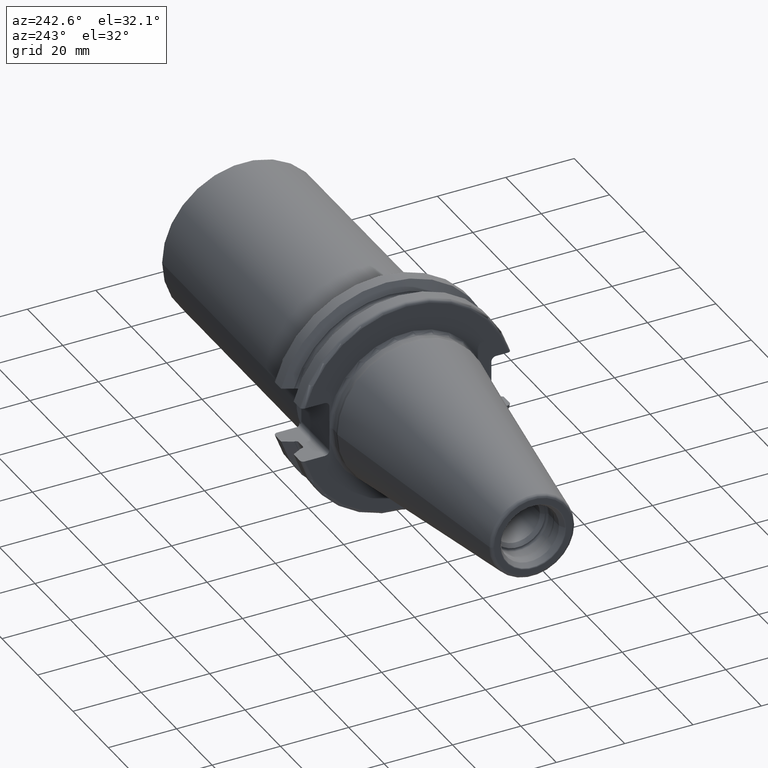
[diagram: clean part render]
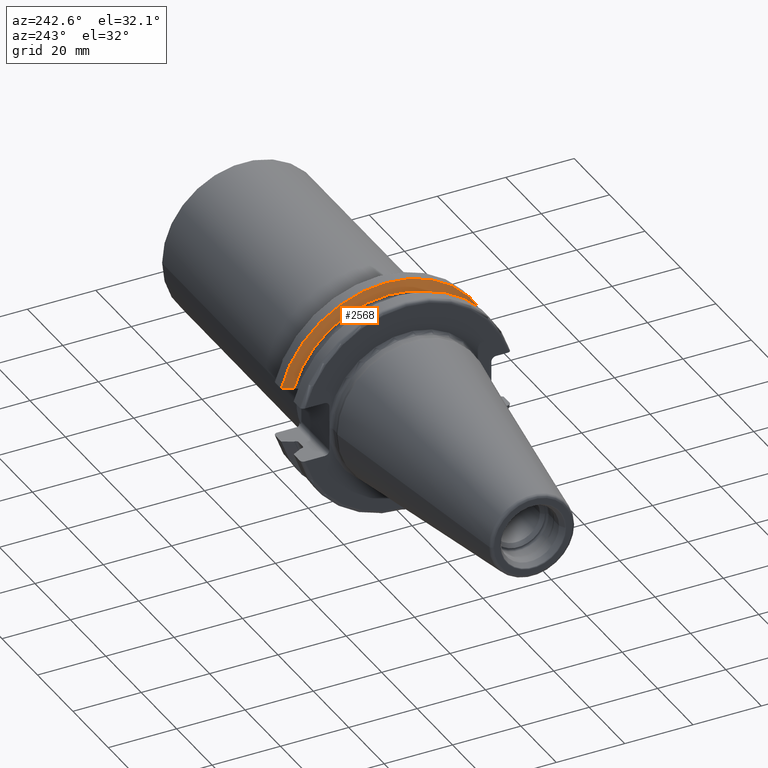
[diagram: same view with one face highlighted and labeled with its STEP entity id]
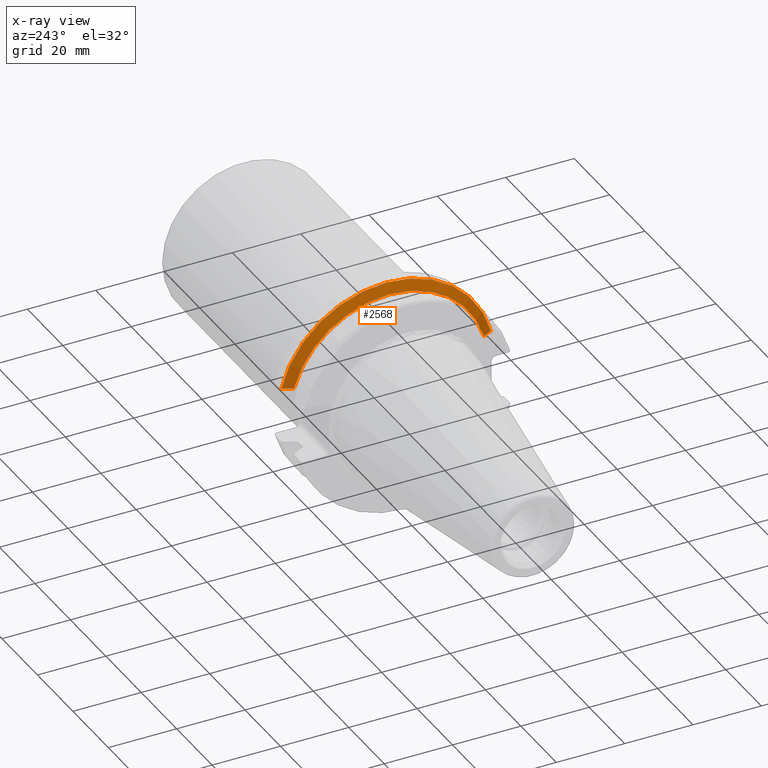
[diagram: x-ray of the same camera — body ghosted, the highlighted face saturated]
A machine part, auxiliary view. The second image highlights one B-rep face of the part: STEP entity #2568.
The next image is the same camera in x-ray: the body ghosted, the highlighted face saturated — about 0% of this face is hidden behind the body in this view.
In plain terms, the highlighted conical surface has half-angle 60 deg.
Its self-contained STEP definition (entity closure, byte-faithful):
#612=CARTESIAN_POINT('',(1.470405352042E1,0.E0,0.E0));
#613=DIRECTION('',(1.E0,0.E0,0.E0));
#614=DIRECTION('',(0.E0,9.669363825036E-1,2.550177095632E-1));
#615=AXIS2_PLACEMENT_3D('',#612,#613,#614);
#776=CARTESIAN_POINT('',(1.470405352042E1,3.071231684927E1,8.1E0));
#777=CARTESIAN_POINT('',(1.451824513517E1,3.037948258059E1,8.1E0));
#778=CARTESIAN_POINT('',(1.415074718503E1,2.972048825911E1,8.1E0));
#779=CARTESIAN_POINT('',(1.361195207986E1,2.875212438619E1,8.1E0));
#780=CARTESIAN_POINT('',(1.326094199325E1,2.811971443922E1,8.1E0));
#781=CARTESIAN_POINT('',(1.30875E1,2.780681820245E1,8.1E0));
#783=CARTESIAN_POINT('',(1.30875E1,-2.780681820245E1,8.1E0));
#784=CARTESIAN_POINT('',(1.326086175289E1,-2.811956968242E1,8.1E0));
#785=CARTESIAN_POINT('',(1.361176448515E1,-2.875178670793E1,8.1E0));
#786=CARTESIAN_POINT('',(1.415055493375E1,-2.972014324708E1,8.1E0));
#787=CARTESIAN_POINT('',(1.451816260441E1,-3.037933474515E1,8.1E0));
#788=CARTESIAN_POINT('',(1.470405352042E1,-3.071231684927E1,8.1E0));
#790=CARTESIAN_POINT('',(1.30875E1,0.E0,0.E0));
#791=DIRECTION('',(1.E0,0.E0,0.E0));
#792=DIRECTION('',(0.E0,9.600957415706E-1,2.796715341576E-1));
#793=AXIS2_PLACEMENT_3D('',#790,#791,#792);
#1455=CARTESIAN_POINT('',(1.30875E1,2.780681820245E1,8.1E0));
#1456=VERTEX_POINT('',#1455);
#1465=CARTESIAN_POINT('',(1.30875E1,-2.780681820245E1,8.1E0));
#1466=VERTEX_POINT('',#1465);
#1475=VERTEX_POINT('',#776);
#1476=VERTEX_POINT('',#788);
#2557=CARTESIAN_POINT('',(1.389577676021E1,0.E0,0.E0));
#2558=DIRECTION('',(1.E0,0.E0,0.E0));
#2559=DIRECTION('',(0.E0,-1.E0,0.E0));
#2560=AXIS2_PLACEMENT_3D('',#2557,#2558,#2559);
#2561=CONICAL_SURFACE('',#2560,3.036252358474E1,6.E1);
#2562=ORIENTED_EDGE('',*,*,#2135,.F.);
#2563=ORIENTED_EDGE('',*,*,#2414,.T.);
#2564=ORIENTED_EDGE('',*,*,#2197,.F.);
#2565=ORIENTED_EDGE('',*,*,#2520,.F.);
#2566=EDGE_LOOP('',(#2562,#2563,#2564,#2565));
#2567=FACE_OUTER_BOUND('',#2566,.F.);
#2568=ADVANCED_FACE('',(#2567),#2561,.T.);
#616=CIRCLE('',#615,3.17625E1);
#782=B_SPLINE_CURVE_WITH_KNOTS('',3,(#776,#777,#778,#779,#780,#781),
.UNSPECIFIED.,.F.,.F.,(4,1,1,4),(0.E0,3.333333333333E-1,6.666666666667E-1,1.E0),
.UNSPECIFIED.);
#789=B_SPLINE_CURVE_WITH_KNOTS('',3,(#783,#784,#785,#786,#787,#788),
.UNSPECIFIED.,.F.,.F.,(4,1,1,4),(0.E0,3.333333333333E-1,6.666666666667E-1,1.E0),
.UNSPECIFIED.);
#794=CIRCLE('',#793,2.896254716948E1);
#2135=EDGE_CURVE('',#1475,#1456,#782,.T.);
#2197=EDGE_CURVE('',#1466,#1476,#789,.T.);
#2414=EDGE_CURVE('',#1475,#1476,#616,.T.);
#2520=EDGE_CURVE('',#1456,#1466,#794,.T.);